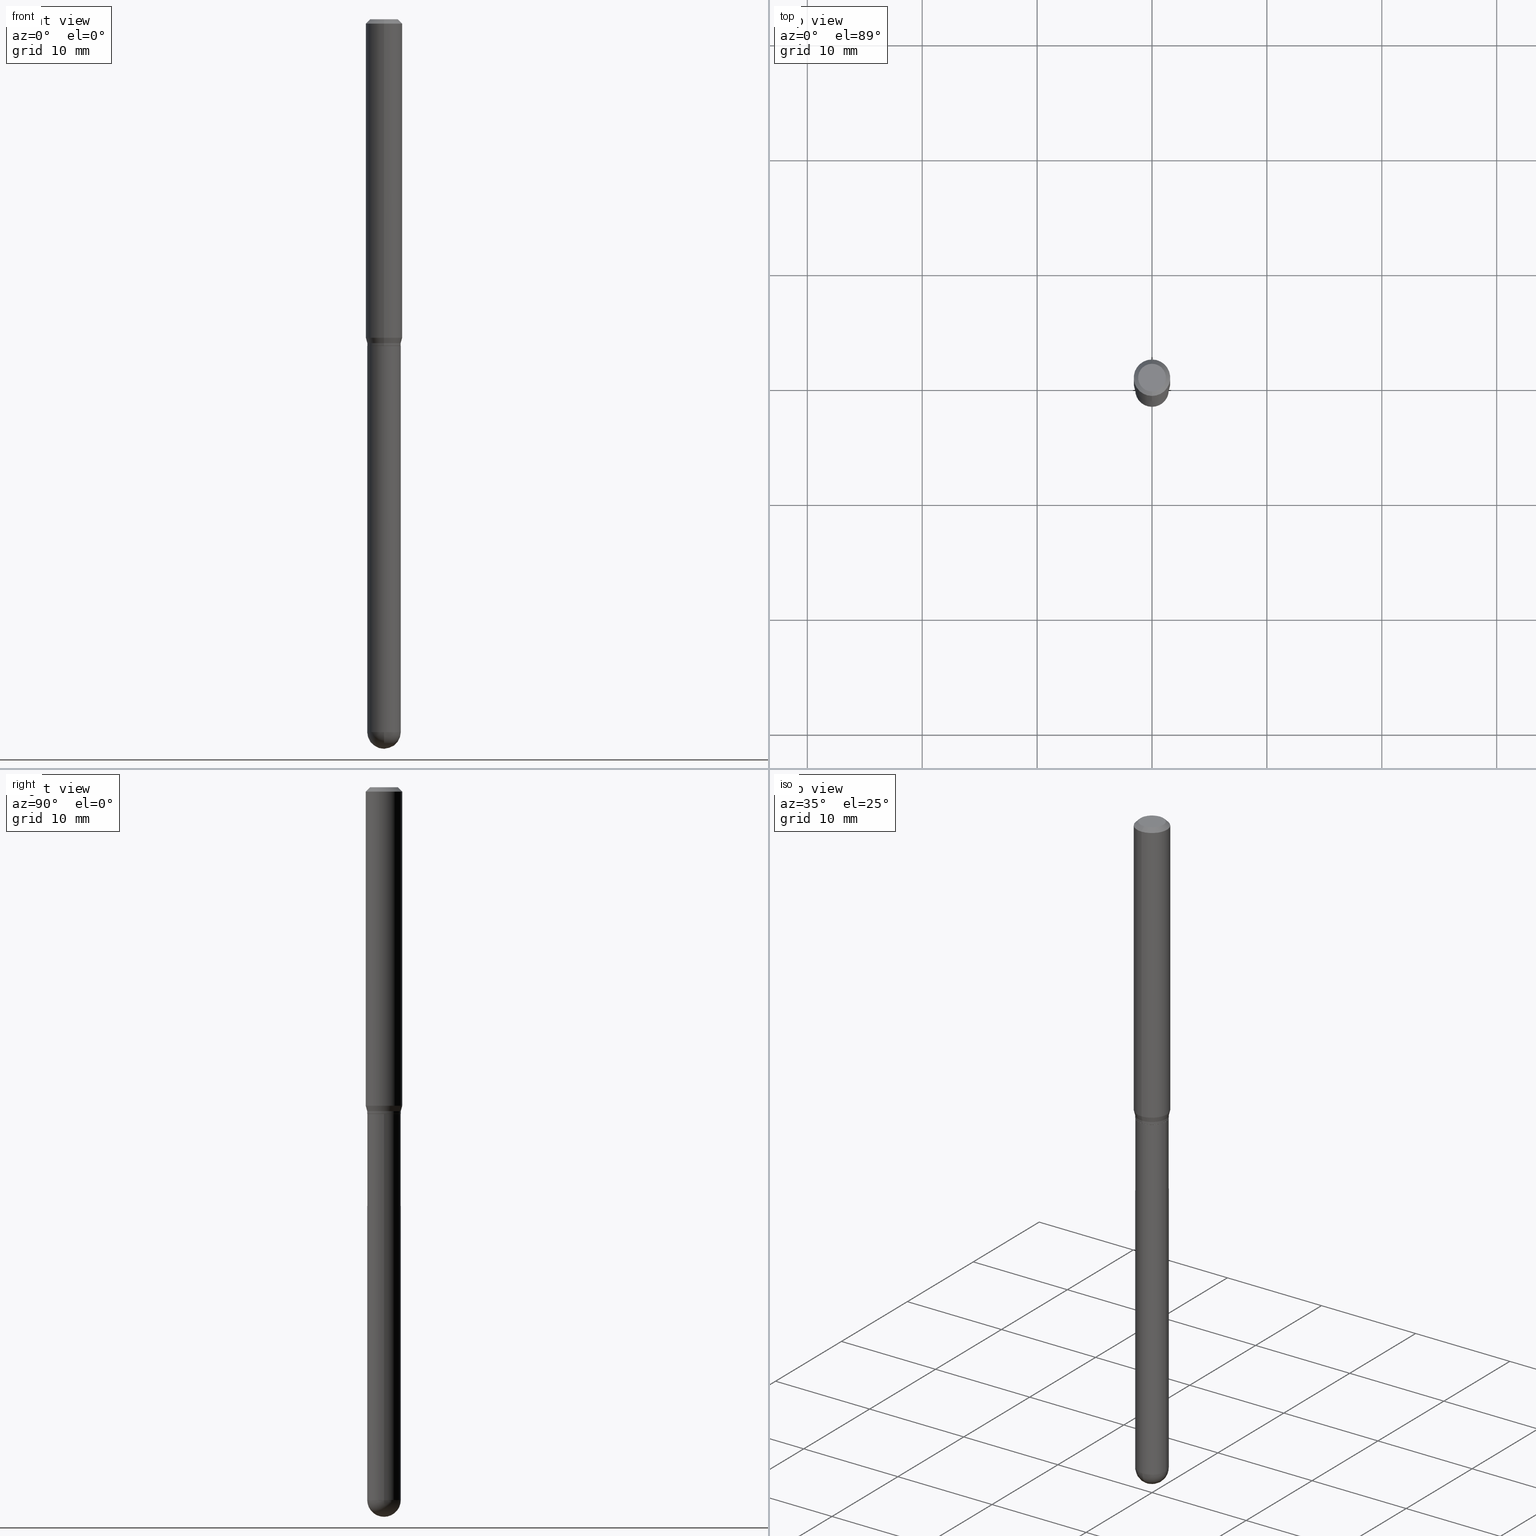
[diagram: canonical four-view strip — front | top / right | iso, engineering-drawing reading convention]
A machine part, canonical four-view strip (front | top / right | iso — engineering-drawing reading convention). The complete STEP part file that produces these views, byte-faithful:
ISO-10303-21;
HEADER;
FILE_DESCRIPTION (( 'STEP AP203' ),
    '1' );
FILE_NAME ('04536.STEP',
    '2024-03-08T20:37:15',
    ( '' ),
    ( '' ),
    'SwSTEP 2.0',
    'SolidWorks 2023',
    '' );
FILE_SCHEMA (( 'CONFIG_CONTROL_DESIGN' ));
ENDSEC;

DATA;
#1 = FACE_OUTER_BOUND ( 'NONE', #448, .T. ) ;
#2 = DIRECTION ( 'NONE',  ( 1.839019923739603076E-15, 0.2588190451025253469, 0.9659258262890670910 ) ) ;
#3 = AXIS2_PLACEMENT_3D ( 'NONE', #334, #495, #421 ) ;
#4 = VECTOR ( 'NONE', #128, 39.37007874015748143 ) ;
#5 = DIRECTION ( 'NONE',  ( -6.982962677686265922E-15, -1.000000000000000000, 4.370956789862821150E-15 ) ) ;
#6 = ADVANCED_FACE ( 'NONE', ( #13 ), #492, .T. ) ;
#7 = PERSON_AND_ORGANIZATION ( #503, #197 ) ;
#8 = ORIENTED_EDGE ( 'NONE', *, *, #353, .T. ) ;
#9 = EDGE_CURVE ( 'NONE', #77, #70, #365, .T. ) ;
#10 = CALENDAR_DATE ( 2024, 8, 3 ) ;
#11 = ORIENTED_EDGE ( 'NONE', *, *, #425, .T. ) ;
#12 = PERSON_AND_ORGANIZATION ( #503, #197 ) ;
#13 = FACE_OUTER_BOUND ( 'NONE', #91, .T. ) ;
#14 = SECURITY_CLASSIFICATION_LEVEL ( 'unclassified' ) ;
#15 = EDGE_LOOP ( 'NONE', ( #261, #262, #410, #175 ) ) ;
#16 = FACE_OUTER_BOUND ( 'NONE', #218, .T. ) ;
#17 = CARTESIAN_POINT ( 'NONE',  ( -4.364351673553916201E-16, -0.06250000000000000000, 2.182151499811262657E-16 ) ) ;
#18 = AXIS2_PLACEMENT_3D ( 'NONE', #116, #255, #288 ) ;
#19 = AXIS2_PLACEMENT_3D ( 'NONE', #64, #418, #415 ) ;
#20 = CARTESIAN_POINT ( 'NONE',  ( -0.05750000000000000250, -5.810639061752296196E-15, -1.120000000000000329 ) ) ;
#21 = DIRECTION ( 'NONE',  ( -6.982962677686265922E-15, -1.000000000000000000, 3.483106191921935554E-15 ) ) ;
#22 = CARTESIAN_POINT ( 'NONE',  ( 3.668243995867287610E-31, -5.237163599547054290E-17, -0.01500000000000006710 ) ) ;
#23 = MANIFOLD_SOLID_BREP ( 'Body-Move/Copy2[2]', #427 ) ;
#24 = DIRECTION ( 'NONE',  ( -2.445495997244847628E-29, 3.491442399698020252E-15, 1.000000000000000000 ) ) ;
#25 = DIRECTION ( 'NONE',  ( -2.445495997244847628E-29, 3.491442399698020646E-15, 1.000000000000000000 ) ) ;
#26 = AXIS2_PLACEMENT_3D ( 'NONE', #224, #147, #331 ) ;
#27 = APPROVAL_PERSON_ORGANIZATION ( #317, #90, #444 ) ;
#28 = ORIENTED_EDGE ( 'NONE', *, *, #445, .T. ) ;
#29 = DIRECTION ( 'NONE',  ( -6.982962677686265922E-15, -1.000000000000000000, 2.396357889179178137E-15 ) ) ;
#30 = DIRECTION ( 'NONE',  ( -2.445495997244847628E-29, 3.491442399698020646E-15, 1.000000000000000000 ) ) ;
#31 = EDGE_LOOP ( 'NONE', ( #298, #279, #122, #299, #134 ) ) ;
#32 = DIRECTION ( 'NONE',  ( -2.445468806185136597E-29, 3.491481338843145583E-15, 1.000000000000000000 ) ) ;
#33 = CYLINDRICAL_SURFACE ( 'NONE', #148, 0.06250000000000000000 ) ;
#34 = EDGE_CURVE ( 'NONE', #333, #499, #417, .T. ) ;
#35 = ORIENTED_EDGE ( 'NONE', *, *, #154, .F. ) ;
#36 = MANIFOLD_SOLID_BREP ( 'Body-Move/Copy2[1]', #44 ) ;
#37 = DIRECTION ( 'NONE',  ( -2.445468806185136877E-29, 3.491481338843145188E-15, 1.000000000000000000 ) ) ;
#38 = CARTESIAN_POINT ( 'NONE',  ( 2.738925062927354020E-29, -3.910459099504324188E-15, -1.120000000000000329 ) ) ;
#39 = EDGE_LOOP ( 'NONE', ( #280, #486, #133, #139 ) ) ;
#40 = CC_DESIGN_APPROVAL ( #206, ( #253 ) ) ;
#41 = LINE ( 'NONE', #163, #4 ) ;
#42 = CARTESIAN_POINT ( 'NONE',  ( 0.05750000000000000250, -4.311979453471284209E-15, -1.120000000000000329 ) ) ;
#43 =( CONVERSION_BASED_UNIT ( 'INCH', #310 ) LENGTH_UNIT ( ) NAMED_UNIT ( #321 ) );
#44 = CLOSED_SHELL ( 'NONE', ( #111, #287, #325, #284, #264 ) ) ;
#45 = DIRECTION ( 'NONE',  ( -6.982962677686266711E-15, -1.000000000000000000, 3.491442399698021040E-15 ) ) ;
#46 = EDGE_LOOP ( 'NONE', ( #340, #335, #249, #304 ) ) ;
#47 = DIRECTION ( 'NONE',  ( 2.445495997244847628E-29, -3.491442399698020646E-15, -1.000000000000000000 ) ) ;
#48 = DIRECTION ( 'NONE',  ( 6.982962677686266711E-15, 1.000000000000000000, -4.751039988981321814E-15 ) ) ;
#49 = APPLICATION_CONTEXT ( 'configuration controlled 3d designs of mechanical parts and assemblies' ) ;
#50 = APPROVAL_STATUS ( 'not_yet_approved' ) ;
#51 = LOCAL_TIME ( 15, 37, 15.00000000000000000, #135 ) ;
#52 = ORIENTED_EDGE ( 'NONE', *, *, #34, .T. ) ;
#53 = COORDINATED_UNIVERSAL_TIME_OFFSET ( 5, 0, .BEHIND. ) ;
#54 = ORIENTED_EDGE ( 'NONE', *, *, #237, .T. ) ;
#55 = ADVANCED_FACE ( 'NONE', ( #176 ), #477, .T. ) ;
#56 = EDGE_CURVE ( 'NONE', #152, #487, #162, .T. ) ;
#57 = ORIENTED_EDGE ( 'NONE', *, *, #395, .F. ) ;
#58 = ORIENTED_EDGE ( 'NONE', *, *, #88, .T. ) ;
#59 = PERSON_AND_ORGANIZATION ( #503, #197 ) ;
#60 = CARTESIAN_POINT ( 'NONE',  ( 2.737732768915607187E-29, -3.908669766461934888E-15, -1.119500000000000384 ) ) ;
#61 = ORIENTED_EDGE ( 'NONE', *, *, #432, .F. ) ;
#62 = APPROVAL ( #315, 'UNSPECIFIED' ) ;
#63 = ORIENTED_EDGE ( 'NONE', *, *, #159, .T. ) ;
#64 = CARTESIAN_POINT ( 'NONE',  ( 4.015203539669877291E-16, 0.05749999999999608896, -1.120000000000000551 ) ) ;
#65 = ORIENTED_EDGE ( 'NONE', *, *, #56, .T. ) ;
#66 = ADVANCED_FACE ( 'NONE', ( #244 ), #33, .T. ) ;
#67 = ORIENTED_EDGE ( 'NONE', *, *, #117, .T. ) ;
#68 = CYLINDRICAL_SURFACE ( 'NONE', #506, 0.05750000000000000250 ) ;
#69 = CIRCLE ( 'NONE', #86, 0.06250000000000000000 ) ;
#70 = VERTEX_POINT ( 'NONE', #412 ) ;
#71 = FACE_OUTER_BOUND ( 'NONE', #222, .T. ) ;
#72 = LINE ( 'NONE', #220, #207 ) ;
#73 = CARTESIAN_POINT ( 'NONE',  ( 2.738955516914229972E-29, -3.910415487661784102E-15, -1.120000000000000329 ) ) ;
#74 = CARTESIAN_POINT ( 'NONE',  ( -4.364351673553650454E-16, -0.06250000000000383027, -1.091339745962155883 ) ) ;
#75 = UNCERTAINTY_MEASURE_WITH_UNIT (LENGTH_MEASURE( 1.000000000000000082E-05 ), #43, 'distance_accuracy_value', 'NONE');
#76 = CC_DESIGN_APPROVAL ( #62, ( #137 ) ) ;
#77 = VERTEX_POINT ( 'NONE', #74 ) ;
#78 = CARTESIAN_POINT ( 'NONE',  ( 4.085620730620851361E-16, 0.05749999999999618611, -1.110000000000000320 ) ) ;
#79 = FACE_OUTER_BOUND ( 'NONE', #485, .T. ) ;
#80 = DIRECTION ( 'NONE',  ( -4.851104656540964275E-15, -0.7071067811865500152, -0.7071067811865450192 ) ) ;
#81 = AXIS2_PLACEMENT_3D ( 'NONE', #107, #282, #141 ) ;
#82 = FACE_OUTER_BOUND ( 'NONE', #83, .T. ) ;
#83 = EDGE_LOOP ( 'NONE', ( #191, #309 ) ) ;
#84 = DIRECTION ( 'NONE',  ( -4.937700262164674260E-15, -0.7071067811865632269, 0.7071067811865319186 ) ) ;
#85 = VERTEX_POINT ( 'NONE', #20 ) ;
#86 = AXIS2_PLACEMENT_3D ( 'NONE', #371, #490, #21 ) ;
#87 = FACE_OUTER_BOUND ( 'NONE', #39, .T. ) ;
#88 = EDGE_CURVE ( 'NONE', #437, #252, #151, .T. ) ;
#89 = CARTESIAN_POINT ( 'NONE',  ( 0.000000000000000000, 0.000000000000000000, 0.000000000000000000 ) ) ;
#90 = APPROVAL ( #132, 'UNSPECIFIED' ) ;
#91 = EDGE_LOOP ( 'NONE', ( #245, #409, #406, #475 ) ) ;
#92 = CARTESIAN_POINT ( 'NONE',  ( -4.015203539669335442E-16, -0.05750000000000393685, -1.110000000000000098 ) ) ;
#93 = DIRECTION ( 'NONE',  ( -2.445495997244847348E-29, 3.491442399698020252E-15, 1.000000000000000000 ) ) ;
#94 = DATE_TIME_ROLE ( 'classification_date' ) ;
#95 = FACE_OUTER_BOUND ( 'NONE', #213, .T. ) ;
#96 = AXIS2_PLACEMENT_3D ( 'NONE', #259, #120, #221 ) ;
#97 = CARTESIAN_POINT ( 'NONE',  ( 3.668243995867287610E-31, -5.237163599547054290E-17, -0.01500000000000006710 ) ) ;
#98 = APPROVAL_DATE_TIME ( #362, #62 ) ;
#99 = EDGE_CURVE ( 'NONE', #366, #400, #168, .T. ) ;
#100 = DIRECTION ( 'NONE',  ( -2.445495997244847628E-29, 3.491442399698020252E-15, 1.000000000000000000 ) ) ;
#101 = PERSON_AND_ORGANIZATION_ROLE ( 'creator' ) ;
#102 = ORIENTED_EDGE ( 'NONE', *, *, #56, .F. ) ;
#103 = CALENDAR_DATE ( 2024, 8, 3 ) ;
#104 = CIRCLE ( 'NONE', #357, 0.05700000000000000205 ) ;
#105 = AXIS2_PLACEMENT_3D ( 'NONE', #240, #392, #337 ) ;
#106 = ADVANCED_FACE ( 'NONE', ( #79 ), #217, .T. ) ;
#107 = CARTESIAN_POINT ( 'NONE',  ( 5.973057559107196227E-29, -8.527943170124383355E-15, -2.442499999999999893 ) ) ;
#108 = CARTESIAN_POINT ( 'NONE',  ( 3.840629472727447874E-16, 0.04749999999999999362, -2.313455976474456528E-16 ) ) ;
#109 = FACE_OUTER_BOUND ( 'NONE', #204, .T. ) ;
#110 = CARTESIAN_POINT ( 'NONE',  ( 2.738955516914229972E-29, -3.910415487661784102E-15, -1.120000000000000329 ) ) ;
#111 = ADVANCED_FACE ( 'NONE', ( #491 ), #68, .T. ) ;
#112 = DIRECTION ( 'NONE',  ( -6.982962677686265922E-15, -1.000000000000000000, 3.483106191921935554E-15 ) ) ;
#113 = AXIS2_PLACEMENT_3D ( 'NONE', #294, #182, #453 ) ;
#114 = CIRCLE ( 'NONE', #394, 0.06250000000000000000 ) ;
#115 = CARTESIAN_POINT ( 'NONE',  ( 4.440892098500893388E-16, 0.06249999999999993755, -0.01500000000000028394 ) ) ;
#116 = CARTESIAN_POINT ( 'NONE',  ( 2.737732768915607187E-29, -3.908669766461934888E-15, -1.119500000000000384 ) ) ;
#117 = EDGE_CURVE ( 'NONE', #487, #152, #177, .T. ) ;
#118 = PLANE ( 'NONE',  #3 ) ;
#119 = CARTESIAN_POINT ( 'NONE',  ( 2.738925062927354020E-29, -3.910459099504324188E-15, -1.120000000000000329 ) ) ;
#120 = DIRECTION ( 'NONE',  ( -2.445495997244847628E-29, 3.491442399698020646E-15, 1.000000000000000000 ) ) ;
#121 = AXIS2_PLACEMENT_3D ( 'NONE', #306, #474, #236 ) ;
#122 = ORIENTED_EDGE ( 'NONE', *, *, #318, .F. ) ;
#123 = EDGE_CURVE ( 'NONE', #314, #333, #433, .T. ) ;
#124 = DIRECTION ( 'NONE',  ( 1.000000000000000000, -6.982962677686265922E-15, 4.876176775795935232E-29 ) ) ;
#125 = DIRECTION ( 'NONE',  ( 0.000000000000000000, 0.000000000000000000, 1.000000000000000000 ) ) ;
#126 = EDGE_CURVE ( 'NONE', #311, #70, #246, .T. ) ;
#127 = VERTEX_POINT ( 'NONE', #493 ) ;
#128 = DIRECTION ( 'NONE',  ( 5.024295867788190974E-15, 0.7071067811865681119, 0.7071067811865270336 ) ) ;
#129 = VECTOR ( 'NONE', #300, 39.37007874015748143 ) ;
#130 = LINE ( 'NONE', #380, #297 ) ;
#131 = SPHERICAL_SURFACE ( 'NONE', #507, 0.05750000000000007189 ) ;
#132 = APPROVAL_STATUS ( 'not_yet_approved' ) ;
#133 = ORIENTED_EDGE ( 'NONE', *, *, #364, .T. ) ;
#134 = ORIENTED_EDGE ( 'NONE', *, *, #251, .T. ) ;
#135 = COORDINATED_UNIVERSAL_TIME_OFFSET ( 5, 0, .BEHIND. ) ;
#136 = AXIS2_PLACEMENT_3D ( 'NONE', #73, #374, #416 ) ;
#137 = PRODUCT_DEFINITION_FORMATION_WITH_SPECIFIED_SOURCE ( 'ANY', '', #211, .NOT_KNOWN. ) ;
#138 = CARTESIAN_POINT ( 'NONE',  ( 2.714500556941780999E-29, -3.875501063664803781E-15, -1.110000000000000098 ) ) ;
#139 = ORIENTED_EDGE ( 'NONE', *, *, #239, .F. ) ;
#140 = PERSON_AND_ORGANIZATION ( #503, #197 ) ;
#141 = DIRECTION ( 'NONE',  ( 1.000000000000000000, -6.982962677686273810E-15, 0.000000000000000000 ) ) ;
#142 = ORIENTED_EDGE ( 'NONE', *, *, #9, .F. ) ;
#143 = AXIS2_PLACEMENT_3D ( 'NONE', #467, #47, #257 ) ;
#144 = EDGE_LOOP ( 'NONE', ( #512, #11, #102, #407 ) ) ;
#145 = CARTESIAN_POINT ( 'NONE',  ( 0.000000000000000000, 0.000000000000000000, 0.000000000000000000 ) ) ;
#146 = DIRECTION ( 'NONE',  ( 1.000000000000000000, -6.982962677686265133E-15, 0.000000000000000000 ) ) ;
#147 = DIRECTION ( 'NONE',  ( -2.445495997244847628E-29, 3.491442399698020646E-15, 1.000000000000000000 ) ) ;
#148 = AXIS2_PLACEMENT_3D ( 'NONE', #464, #426, #250 ) ;
#149 = DIRECTION ( 'NONE',  ( -2.445468806185136877E-29, 3.491481338843145188E-15, 1.000000000000000000 ) ) ;
#150 = LOCAL_TIME ( 15, 37, 15.00000000000000000, #274 ) ;
#151 = LINE ( 'NONE', #323, #194 ) ;
#152 = VERTEX_POINT ( 'NONE', #292 ) ;
#153 = DIRECTION ( 'NONE',  ( -2.445495997244847628E-29, 3.491442399698020646E-15, 1.000000000000000000 ) ) ;
#154 = EDGE_CURVE ( 'NONE', #339, #77, #277, .T. ) ;
#155 = EDGE_CURVE ( 'NONE', #127, #439, #104, .T. ) ;
#156 = CARTESIAN_POINT ( 'NONE',  ( -3.773273898774340269E-16, -0.04749999999999999362, 1.003414303238663352E-16 ) ) ;
#157 = AXIS2_PLACEMENT_3D ( 'NONE', #381, #290, #456 ) ;
#158 = CIRCLE ( 'NONE', #164, 0.05750000000000000250 ) ;
#159 = EDGE_CURVE ( 'NONE', #275, #241, #369, .T. ) ;
#160 = CARTESIAN_POINT ( 'NONE',  ( 0.05750000000000000250, -6.620721488781313792E-15, -2.442499999999999893 ) ) ;
#161 = FACE_OUTER_BOUND ( 'NONE', #200, .T. ) ;
#162 = CIRCLE ( 'NONE', #446, 0.05750000000000005801 ) ;
#163 = CARTESIAN_POINT ( 'NONE',  ( 4.050093593832844842E-16, 0.05699999999999608852, -1.120000000000000551 ) ) ;
#164 = AXIS2_PLACEMENT_3D ( 'NONE', #424, #32, #268 ) ;
#165 = DIRECTION ( 'NONE',  ( 1.000000000000000000, -6.982962677686273810E-15, 0.000000000000000000 ) ) ;
#166 = ORIENTED_EDGE ( 'NONE', *, *, #445, .F. ) ;
#167 = COORDINATED_UNIVERSAL_TIME_OFFSET ( 5, 0, .BEHIND. ) ;
#168 = CIRCLE ( 'NONE', #96, 0.04749999999999999362 ) ;
#169 = PERSON_AND_ORGANIZATION_ROLE ( 'design_owner' ) ;
#170 = AXIS2_PLACEMENT_3D ( 'NONE', #22, #30, #112 ) ;
#171 = AXIS2_PLACEMENT_3D ( 'NONE', #349, #195, #305 ) ;
#172 = CALENDAR_DATE ( 2024, 8, 3 ) ;
#173 = EDGE_LOOP ( 'NONE', ( #166, #67, #193, #429 ) ) ;
#174 = PERSON_AND_ORGANIZATION ( #503, #197 ) ;
#175 = ORIENTED_EDGE ( 'NONE', *, *, #126, .F. ) ;
#176 = FACE_OUTER_BOUND ( 'NONE', #388, .T. ) ;
#177 = CIRCLE ( 'NONE', #18, 0.05750000000000005801 ) ;
#178 = DIRECTION ( 'NONE',  ( -6.982962677686266711E-15, -1.000000000000000000, 3.491442399698021040E-15 ) ) ;
#179 = ORIENTED_EDGE ( 'NONE', *, *, #99, .F. ) ;
#180 = ADVANCED_FACE ( 'NONE', ( #109 ), #488, .T. ) ;
#181 = DIRECTION ( 'NONE',  ( -2.445495997244847628E-29, 3.491442399698020646E-15, 1.000000000000000000 ) ) ;
#182 = DIRECTION ( 'NONE',  ( -2.445468806185136597E-29, 3.491481338843145583E-15, 1.000000000000000000 ) ) ;
#183 = CARTESIAN_POINT ( 'NONE',  ( 4.440892098500891416E-16, 0.06249999999999617667, -1.091339745962156327 ) ) ;
#184 = DIRECTION ( 'NONE',  ( -6.982962677686265922E-15, -1.000000000000000000, 2.396357889179178137E-15 ) ) ;
#185 = DIRECTION ( 'NONE',  ( -6.982962677686266711E-15, -1.000000000000000000, 2.375519994490661302E-15 ) ) ;
#186 = EDGE_LOOP ( 'NONE', ( #465, #212 ) ) ;
#187 = LINE ( 'NONE', #470, #443 ) ;
#188 = SPHERICAL_SURFACE ( 'NONE', #121, 0.05750000000000007189 ) ;
#189 = VECTOR ( 'NONE', #468, 39.37007874015748143 ) ;
#190 = CARTESIAN_POINT ( 'NONE',  ( 0.000000000000000000, 0.000000000000000000, 0.000000000000000000 ) ) ;
#191 = ORIENTED_EDGE ( 'NONE', *, *, #223, .F. ) ;
#192 = CARTESIAN_POINT ( 'NONE',  ( 0.000000000000000000, 0.000000000000000000, 0.000000000000000000 ) ) ;
#193 = ORIENTED_EDGE ( 'NONE', *, *, #508, .T. ) ;
#194 = VECTOR ( 'NONE', #149, 39.37007874015748143 ) ;
#195 = DIRECTION ( 'NONE',  ( 1.000000000000000000, -6.982962677686265922E-15, 4.883557194083112340E-29 ) ) ;
#196 = DIRECTION ( 'NONE',  ( -2.445468806185136597E-29, 3.491481338843145583E-15, 1.000000000000000000 ) ) ;
#197 = ORGANIZATION ( 'UNSPECIFIED', 'UNSPECIFIED', '' ) ;
#198 = ADVANCED_BREP_SHAPE_REPRESENTATION ( '04536', ( #36, #23, #291 ), #342 ) ;
#199 = EDGE_CURVE ( 'NONE', #400, #366, #449, .T. ) ;
#200 = EDGE_LOOP ( 'NONE', ( #57, #52, #375, #58, #226 ) ) ;
#201 = PRODUCT_DEFINITION_SHAPE ( 'NONE', 'NONE',  #454 ) ;
#202 = APPROVAL_ROLE ( '' ) ;
#203 = VECTOR ( 'NONE', #100, 39.37007874015748143 ) ;
#204 = EDGE_LOOP ( 'NONE', ( #368, #63, #346, #35 ) ) ;
#205 = ORIENTED_EDGE ( 'NONE', *, *, #451, .F. ) ;
#206 = APPROVAL ( #50, 'UNSPECIFIED' ) ;
#207 = VECTOR ( 'NONE', #84, 39.37007874015748143 ) ;
#208 = ADVANCED_FACE ( 'NONE', ( #326 ), #341, .T. ) ;
#209 = ORIENTED_EDGE ( 'NONE', *, *, #270, .T. ) ;
#210 = DATE_AND_TIME ( #172, #260 ) ;
#211 = PRODUCT ( '04536', '04536', '', ( #344 ) ) ;
#212 = ORIENTED_EDGE ( 'NONE', *, *, #303, .T. ) ;
#213 = EDGE_LOOP ( 'NONE', ( #61, #54, #285, #332 ) ) ;
#214 = ADVANCED_FACE ( 'NONE', ( #71 ), #118, .F. ) ;
#215 = AXIS2_PLACEMENT_3D ( 'NONE', #372, #295, #419 ) ;
#216 = CONICAL_SURFACE ( 'NONE', #143, 0.06250000000000000000, 0.7853981633974483900 ) ;
#217 = CYLINDRICAL_SURFACE ( 'NONE', #327, 0.06250000000000000000 ) ;
#218 = EDGE_LOOP ( 'NONE', ( #65, #28, #509, #462 ) ) ;
#219 = CARTESIAN_POINT ( 'NONE',  ( 2.738955516914229972E-29, -3.910415487661784102E-15, -1.120000000000000329 ) ) ;
#220 = CARTESIAN_POINT ( 'NONE',  ( -3.980288726280897482E-16, -0.05700000000000390865, -1.120000000000000107 ) ) ;
#221 = DIRECTION ( 'NONE',  ( -6.982962677686266711E-15, -1.000000000000000000, 3.491442399698021040E-15 ) ) ;
#222 = EDGE_LOOP ( 'NONE', ( #481, #379 ) ) ;
#223 = EDGE_CURVE ( 'NONE', #439, #127, #413, .T. ) ;
#224 = CARTESIAN_POINT ( 'NONE',  ( 2.668866980384661490E-29, -3.810349861527938481E-15, -1.091339745962156105 ) ) ;
#225 = CC_DESIGN_SECURITY_CLASSIFICATION ( #253, ( #137 ) ) ;
#226 = ORIENTED_EDGE ( 'NONE', *, *, #303, .F. ) ;
#227 = DIRECTION ( 'NONE',  ( -2.445495997244847628E-29, 3.491442399698020252E-15, 1.000000000000000000 ) ) ;
#228 = DIRECTION ( 'NONE',  ( 1.000000000000000000, -6.982962677686265922E-15, 4.876176775795935232E-29 ) ) ;
#229 =( NAMED_UNIT ( * ) SI_UNIT ( $, .STERADIAN. ) SOLID_ANGLE_UNIT ( ) );
#230 = CARTESIAN_POINT ( 'NONE',  ( 2.738955516914229972E-29, -3.910415487661784102E-15, -1.120000000000000329 ) ) ;
#231 = ORIENTED_EDGE ( 'NONE', *, *, #251, .F. ) ;
#232 = DIRECTION ( 'NONE',  ( -2.445495997244847628E-29, 3.491442399698020252E-15, 1.000000000000000000 ) ) ;
#233 = CIRCLE ( 'NONE', #248, 0.05750000000000000250 ) ;
#234 = LINE ( 'NONE', #235, #358 ) ;
#235 = CARTESIAN_POINT ( 'NONE',  ( 4.085620730620579698E-16, 0.05750000000000005801, -2.007579379826364011E-16 ) ) ;
#236 = DIRECTION ( 'NONE',  ( 6.982962677686266711E-15, 1.000000000000000000, -4.751039988981321814E-15 ) ) ;
#237 = EDGE_CURVE ( 'NONE', #422, #499, #283, .T. ) ;
#238 = SHAPE_DEFINITION_REPRESENTATION ( #201, #198 ) ;
#239 = EDGE_CURVE ( 'NONE', #366, #311, #267, .T. ) ;
#240 = CARTESIAN_POINT ( 'NONE',  ( 2.714500556941780999E-29, -3.875501063664803781E-15, -1.110000000000000098 ) ) ;
#241 = VERTEX_POINT ( 'NONE', #384 ) ;
#242 = CONICAL_SURFACE ( 'NONE', #329, 0.05700000000000000205, 0.7853981633974739252 ) ;
#243 = DATE_AND_TIME ( #103, #51 ) ;
#244 = FACE_OUTER_BOUND ( 'NONE', #15, .T. ) ;
#245 = ORIENTED_EDGE ( 'NONE', *, *, #308, .T. ) ;
#246 = CIRCLE ( 'NONE', #170, 0.06250000000000000000 ) ;
#247 = APPROVAL_DATE_TIME ( #243, #206 ) ;
#248 = AXIS2_PLACEMENT_3D ( 'NONE', #38, #196, #350 ) ;
#249 = ORIENTED_EDGE ( 'NONE', *, *, #378, .T. ) ;
#250 = DIRECTION ( 'NONE',  ( -6.982962677686265922E-15, -1.000000000000000000, 3.491442399698020252E-15 ) ) ;
#251 = EDGE_CURVE ( 'NONE', #437, #314, #393, .T. ) ;
#252 = VERTEX_POINT ( 'NONE', #42 ) ;
#253 = SECURITY_CLASSIFICATION ( '', '', #14 ) ;
#254 = CARTESIAN_POINT ( 'NONE',  ( 2.738955516914229972E-29, -3.910415487661784102E-15, -1.120000000000000329 ) ) ;
#255 = DIRECTION ( 'NONE',  ( -2.445495997244847628E-29, 3.491442399698020646E-15, 1.000000000000000000 ) ) ;
#256 = DIRECTION ( 'NONE',  ( -1.000000000000000000, 7.105427357601001070E-15, -4.926315508542082329E-29 ) ) ;
#257 = DIRECTION ( 'NONE',  ( 6.982962677686265922E-15, 1.000000000000000000, -3.483106191921935554E-15 ) ) ;
#258 = AXIS2_PLACEMENT_3D ( 'NONE', #219, #25, #184 ) ;
#259 = CARTESIAN_POINT ( 'NONE',  ( 1.601850834061036899E-45, -2.286967521653393436E-31, -6.550208366178964645E-17 ) ) ;
#260 = LOCAL_TIME ( 15, 37, 15.00000000000000000, #53 ) ;
#261 = ORIENTED_EDGE ( 'NONE', *, *, #353, .F. ) ;
#262 = ORIENTED_EDGE ( 'NONE', *, *, #154, .T. ) ;
#263 = PLANE ( 'NONE',  #351 ) ;
#264 = ADVANCED_FACE ( 'NONE', ( #161 ), #428, .T. ) ;
#265 = CARTESIAN_POINT ( 'NONE',  ( 4.085620730620848896E-16, 0.05749999999999608896, -1.119500000000000384 ) ) ;
#266 = CC_DESIGN_PERSON_AND_ORGANIZATION_ASSIGNMENT ( #140, #101, ( #137 ) ) ;
#267 = LINE ( 'NONE', #431, #189 ) ;
#268 = DIRECTION ( 'NONE',  ( 1.000000000000000000, -6.982962677686273810E-15, 0.000000000000000000 ) ) ;
#269 = FACE_OUTER_BOUND ( 'NONE', #173, .T. ) ;
#270 = EDGE_CURVE ( 'NONE', #77, #339, #114, .T. ) ;
#271 = CARTESIAN_POINT ( 'NONE',  ( 5.968140352944414042E-29, -8.534984889219480121E-15, -2.442499999999999893 ) ) ;
#272 = ADVANCED_FACE ( 'NONE', ( #269 ), #434, .T. ) ;
#273 = ADVANCED_FACE ( 'NONE', ( #82 ), #263, .F. ) ;
#274 = COORDINATED_UNIVERSAL_TIME_OFFSET ( 5, 0, .BEHIND. ) ;
#275 = VERTEX_POINT ( 'NONE', #382 ) ;
#276 = DIRECTION ( 'NONE',  ( 6.982962677686265922E-15, 1.000000000000000000, -3.483106191921935554E-15 ) ) ;
#277 = CIRCLE ( 'NONE', #26, 0.06250000000000000000 ) ;
#278 = CIRCLE ( 'NONE', #466, 0.05750000000000000250 ) ;
#279 = ORIENTED_EDGE ( 'NONE', *, *, #395, .T. ) ;
#280 = ORIENTED_EDGE ( 'NONE', *, *, #199, .F. ) ;
#281 = DATE_AND_TIME ( #396, #496 ) ;
#282 = DIRECTION ( 'NONE',  ( -2.445468806185136597E-29, 3.491481338843145583E-15, 1.000000000000000000 ) ) ;
#283 = CIRCLE ( 'NONE', #319, 0.05750000000000007189 ) ;
#284 = ADVANCED_FACE ( 'NONE', ( #1 ), #188, .T. ) ;
#285 = ORIENTED_EDGE ( 'NONE', *, *, #34, .F. ) ;
#286 = ORIENTED_EDGE ( 'NONE', *, *, #237, .F. ) ;
#287 = ADVANCED_FACE ( 'NONE', ( #95 ), #131, .T. ) ;
#288 = DIRECTION ( 'NONE',  ( -6.982962677686266711E-15, -1.000000000000000000, 2.375519994490661302E-15 ) ) ;
#289 = LINE ( 'NONE', #373, #385 ) ;
#290 = DIRECTION ( 'NONE',  ( -2.445495997244847628E-29, 3.491442399698020646E-15, 1.000000000000000000 ) ) ;
#291 = AXIS2_PLACEMENT_3D ( 'NONE', #192, #125, #430 ) ;
#292 = CARTESIAN_POINT ( 'NONE',  ( -4.015203539669337414E-16, -0.05750000000000403400, -1.119500000000000162 ) ) ;
#293 = DIRECTION ( 'NONE',  ( -2.445495997244847628E-29, 3.491442399698020646E-15, 1.000000000000000000 ) ) ;
#294 = CARTESIAN_POINT ( 'NONE',  ( 5.973057559107196227E-29, -8.527943170124383355E-15, -2.442499999999999893 ) ) ;
#295 = DIRECTION ( 'NONE',  ( -2.445495997244847628E-29, 3.491442399698020646E-15, 1.000000000000000000 ) ) ;
#296 = CARTESIAN_POINT ( 'NONE',  ( -3.980288726280897482E-16, -0.05700000000000390865, -1.120000000000000107 ) ) ;
#297 = VECTOR ( 'NONE', #80, 39.37007874015748143 ) ;
#298 = ORIENTED_EDGE ( 'NONE', *, *, #123, .T. ) ;
#299 = ORIENTED_EDGE ( 'NONE', *, *, #88, .F. ) ;
#300 = DIRECTION ( 'NONE',  ( -1.807323732225332900E-15, -0.2588190451025185745, 0.9659258262890689783 ) ) ;
#301 = ORIENTED_EDGE ( 'NONE', *, *, #126, .T. ) ;
#302 =( NAMED_UNIT ( * ) PLANE_ANGLE_UNIT ( ) SI_UNIT ( $, .RADIAN. ) );
#303 = EDGE_CURVE ( 'NONE', #85, #252, #233, .T. ) ;
#304 = ORIENTED_EDGE ( 'NONE', *, *, #117, .F. ) ;
#305 = DIRECTION ( 'NONE',  ( 6.982962677686265922E-15, 1.000000000000000000, 0.000000000000000000 ) ) ;
#306 = CARTESIAN_POINT ( 'NONE',  ( 5.968140352944414042E-29, -8.534984889219480121E-15, -2.442499999999999893 ) ) ;
#307 = LOCAL_TIME ( 15, 37, 15.00000000000000000, #167 ) ;
#308 = EDGE_CURVE ( 'NONE', #241, #275, #457, .T. ) ;
#309 = ORIENTED_EDGE ( 'NONE', *, *, #155, .F. ) ;
#310 = LENGTH_MEASURE_WITH_UNIT ( LENGTH_MEASURE( 0.02539999999999999897 ), #383 );
#311 = VERTEX_POINT ( 'NONE', #115 ) ;
#312 = APPROVAL_DATE_TIME ( #281, #90 ) ;
#313 = PERSON_AND_ORGANIZATION ( #503, #197 ) ;
#314 = VERTEX_POINT ( 'NONE', #322 ) ;
#315 = APPROVAL_STATUS ( 'not_yet_approved' ) ;
#316 = DIRECTION ( 'NONE',  ( -2.445495997244847628E-29, 3.491442399698020646E-15, 1.000000000000000000 ) ) ;
#317 = PERSON_AND_ORGANIZATION ( #503, #197 ) ;
#318 = EDGE_CURVE ( 'NONE', #252, #85, #278, .T. ) ;
#319 = AXIS2_PLACEMENT_3D ( 'NONE', #498, #256, #505 ) ;
#320 = AXIS2_PLACEMENT_3D ( 'NONE', #190, #345, #124 ) ;
#321 = DIMENSIONAL_EXPONENTS ( 1.000000000000000000, 0.000000000000000000, 0.000000000000000000, 0.000000000000000000, 0.000000000000000000, 0.000000000000000000, 0.000000000000000000 ) ;
#322 = CARTESIAN_POINT ( 'NONE',  ( 4.015203539670203189E-16, 0.05749999999999149541, -2.442500000000000338 ) ) ;
#323 = CARTESIAN_POINT ( 'NONE',  ( 0.05750000000000000250, -4.015203539669603161E-16, 2.803801646082662941E-30 ) ) ;
#324 = CARTESIAN_POINT ( 'NONE',  ( 0.000000000000000000, 0.000000000000000000, 0.000000000000000000 ) ) ;
#325 = ADVANCED_FACE ( 'NONE', ( #455 ), #408, .F. ) ;
#326 = FACE_OUTER_BOUND ( 'NONE', #46, .T. ) ;
#327 = AXIS2_PLACEMENT_3D ( 'NONE', #324, #377, #501 ) ;
#328 = CC_DESIGN_DATE_AND_TIME_ASSIGNMENT ( #440, #94, ( #253 ) ) ;
#329 = AXIS2_PLACEMENT_3D ( 'NONE', #110, #293, #29 ) ;
#330 = VECTOR ( 'NONE', #2, 39.37007874015748143 ) ;
#331 = DIRECTION ( 'NONE',  ( -6.982962677686265922E-15, -1.000000000000000000, 4.370956789862821150E-15 ) ) ;
#332 = ORIENTED_EDGE ( 'NONE', *, *, #123, .F. ) ;
#333 = VERTEX_POINT ( 'NONE', #420 ) ;
#334 = CARTESIAN_POINT ( 'NONE',  ( 3.316907271900976096E-16, 0.04749999999999999362, -1.985945558165507679E-16 ) ) ;
#335 = ORIENTED_EDGE ( 'NONE', *, *, #155, .T. ) ;
#336 = LINE ( 'NONE', #92, #129 ) ;
#337 = DIRECTION ( 'NONE',  ( -6.982962677686266711E-15, -1.000000000000000000, 2.375519994490661302E-15 ) ) ;
#338 = ADVANCED_FACE ( 'NONE', ( #367 ), #242, .T. ) ;
#339 = VERTEX_POINT ( 'NONE', #183 ) ;
#340 = ORIENTED_EDGE ( 'NONE', *, *, #425, .F. ) ;
#341 = CONICAL_SURFACE ( 'NONE', #136, 0.05700000000000000205, 0.7853981633974739252 ) ;
#342 =( GEOMETRIC_REPRESENTATION_CONTEXT ( 3 ) GLOBAL_UNCERTAINTY_ASSIGNED_CONTEXT ( ( #75 ) ) GLOBAL_UNIT_ASSIGNED_CONTEXT ( ( #43, #302, #229 ) ) REPRESENTATION_CONTEXT ( 'NONE', 'WORKASPACE' ) );
#343 = ADVANCED_FACE ( 'NONE', ( #16 ), #452, .T. ) ;
#344 = MECHANICAL_CONTEXT ( 'NONE', #359, 'mechanical' ) ;
#345 = DIRECTION ( 'NONE',  ( -2.445468806185136597E-29, 3.491481338843145583E-15, 1.000000000000000000 ) ) ;
#346 = ORIENTED_EDGE ( 'NONE', *, *, #399, .T. ) ;
#347 = APPLICATION_PROTOCOL_DEFINITION ( 'international standard', 'config_control_design', 1994, #359 ) ;
#348 = DIRECTION ( 'NONE',  ( -6.982962677686265922E-15, -1.000000000000000000, 3.491442399698020252E-15 ) ) ;
#349 = CARTESIAN_POINT ( 'NONE',  ( 5.968140352944414042E-29, -8.534984889219480121E-15, -2.442499999999999893 ) ) ;
#350 = DIRECTION ( 'NONE',  ( 1.000000000000000000, -6.982962677686265133E-15, 0.000000000000000000 ) ) ;
#351 = AXIS2_PLACEMENT_3D ( 'NONE', #230, #93, #348 ) ;
#352 = DATE_TIME_ROLE ( 'creation_date' ) ;
#353 = EDGE_CURVE ( 'NONE', #339, #311, #289, .T. ) ;
#354 = AXIS2_PLACEMENT_3D ( 'NONE', #97, #361, #276 ) ;
#355 = DESIGN_CONTEXT ( 'detailed design', #49, 'design' ) ;
#356 = APPLICATION_PROTOCOL_DEFINITION ( 'international standard', 'config_control_design', 1994, #49 ) ;
#357 = AXIS2_PLACEMENT_3D ( 'NONE', #254, #153, #460 ) ;
#358 = VECTOR ( 'NONE', #232, 39.37007874015748143 ) ;
#359 = APPLICATION_CONTEXT ( 'configuration controlled 3d designs of mechanical parts and assemblies' ) ;
#360 = PERSON_AND_ORGANIZATION ( #503, #197 ) ;
#361 = DIRECTION ( 'NONE',  ( 2.445495997244847628E-29, -3.491442399698020646E-15, -1.000000000000000000 ) ) ;
#362 = DATE_AND_TIME ( #447, #307 ) ;
#363 = CC_DESIGN_PERSON_AND_ORGANIZATION_ASSIGNMENT ( #174, #483, ( #253 ) ) ;
#364 = EDGE_CURVE ( 'NONE', #70, #311, #69, .T. ) ;
#365 = LINE ( 'NONE', #17, #203 ) ;
#366 = VERTEX_POINT ( 'NONE', #108 ) ;
#367 = FACE_OUTER_BOUND ( 'NONE', #144, .T. ) ;
#368 = ORIENTED_EDGE ( 'NONE', *, *, #494, .F. ) ;
#369 = CIRCLE ( 'NONE', #376, 0.05750000000000005801 ) ;
#370 = CARTESIAN_POINT ( 'NONE',  ( 2.714500556941780999E-29, -3.875501063664803781E-15, -1.110000000000000098 ) ) ;
#371 = CARTESIAN_POINT ( 'NONE',  ( 3.668243995867287610E-31, -5.237163599547054290E-17, -0.01500000000000006710 ) ) ;
#372 = CARTESIAN_POINT ( 'NONE',  ( 2.714500556941780999E-29, -3.875501063664803781E-15, -1.110000000000000098 ) ) ;
#373 = CARTESIAN_POINT ( 'NONE',  ( 4.440892098500625669E-16, 0.06250000000000000000, -2.182151499811262657E-16 ) ) ;
#374 = DIRECTION ( 'NONE',  ( -2.445495997244847628E-29, 3.491442399698020646E-15, 1.000000000000000000 ) ) ;
#375 = ORIENTED_EDGE ( 'NONE', *, *, #478, .T. ) ;
#376 = AXIS2_PLACEMENT_3D ( 'NONE', #370, #181, #185 ) ;
#377 = DIRECTION ( 'NONE',  ( -2.445495997244847628E-29, 3.491442399698020646E-15, 1.000000000000000000 ) ) ;
#378 = EDGE_CURVE ( 'NONE', #439, #152, #72, .T. ) ;
#379 = ORIENTED_EDGE ( 'NONE', *, *, #199, .T. ) ;
#380 = CARTESIAN_POINT ( 'NONE',  ( -4.287811248607203282E-16, -0.06250000000000005551, -0.01499999999999984852 ) ) ;
#381 = CARTESIAN_POINT ( 'NONE',  ( 1.601850834061036899E-45, -2.286967521653393436E-31, -6.550208366178964645E-17 ) ) ;
#382 = CARTESIAN_POINT ( 'NONE',  ( 4.263256414560873608E-16, 0.05749999999999618611, -1.110000000000000320 ) ) ;
#383 =( LENGTH_UNIT ( ) NAMED_UNIT ( * ) SI_UNIT ( $, .METRE. ) );
#384 = CARTESIAN_POINT ( 'NONE',  ( -4.015203539669335442E-16, -0.05750000000000393685, -1.110000000000000098 ) ) ;
#385 = VECTOR ( 'NONE', #24, 39.37007874015748143 ) ;
#386 = CARTESIAN_POINT ( 'NONE',  ( -4.085620730619980656E-16, -0.05750000000000857203, -2.442499999999999893 ) ) ;
#387 = DIRECTION ( 'NONE',  ( -2.445495997244847628E-29, 3.491442399698020646E-15, 1.000000000000000000 ) ) ;
#388 = EDGE_LOOP ( 'NONE', ( #205, #179, #469, #301 ) ) ;
#389 = CARTESIAN_POINT ( 'NONE',  ( 6.111213412381450399E-29, -8.732224206655412537E-15, -2.500000000000000000 ) ) ;
#390 = DIRECTION ( 'NONE',  ( -1.000000000000000000, 6.982962677686266711E-15, -4.883557194083112901E-29 ) ) ;
#391 = PERSON_AND_ORGANIZATION_ROLE ( 'design_supplier' ) ;
#392 = DIRECTION ( 'NONE',  ( -2.445495997244847628E-29, 3.491442399698020646E-15, 1.000000000000000000 ) ) ;
#393 = CIRCLE ( 'NONE', #435, 0.05750000000000000250 ) ;
#394 = AXIS2_PLACEMENT_3D ( 'NONE', #511, #472, #5 ) ;
#395 = EDGE_CURVE ( 'NONE', #333, #85, #187, .T. ) ;
#396 = CALENDAR_DATE ( 2024, 8, 3 ) ;
#397 = AXIS2_PLACEMENT_3D ( 'NONE', #138, #316, #479 ) ;
#398 = ORIENTED_EDGE ( 'NONE', *, *, #432, .T. ) ;
#399 = EDGE_CURVE ( 'NONE', #241, #77, #336, .T. ) ;
#400 = VERTEX_POINT ( 'NONE', #156 ) ;
#401 = AXIS2_PLACEMENT_3D ( 'NONE', #411, #459, #178 ) ;
#402 = ORIENTED_EDGE ( 'NONE', *, *, #364, .F. ) ;
#403 = PRODUCT_RELATED_PRODUCT_CATEGORY ( 'detail', '', ( #211 ) ) ;
#404 = COORDINATED_UNIVERSAL_TIME_OFFSET ( 5, 0, .BEHIND. ) ;
#405 = DIRECTION ( 'NONE',  ( -2.445495997244847628E-29, 3.491442399698020646E-15, 1.000000000000000000 ) ) ;
#406 = ORIENTED_EDGE ( 'NONE', *, *, #270, .F. ) ;
#407 = ORIENTED_EDGE ( 'NONE', *, *, #378, .F. ) ;
#408 = PLANE ( 'NONE',  #19 ) ;
#409 = ORIENTED_EDGE ( 'NONE', *, *, #494, .T. ) ;
#410 = ORIENTED_EDGE ( 'NONE', *, *, #9, .T. ) ;
#411 = CARTESIAN_POINT ( 'NONE',  ( 0.000000000000000000, 0.000000000000000000, 0.000000000000000000 ) ) ;
#412 = CARTESIAN_POINT ( 'NONE',  ( -4.364351673553912750E-16, -0.06250000000000005551, -0.01499999999999984852 ) ) ;
#413 = CIRCLE ( 'NONE', #258, 0.05700000000000000205 ) ;
#414 = VECTOR ( 'NONE', #227, 39.37007874015748143 ) ;
#415 = DIRECTION ( 'NONE',  ( -1.000000000000000000, 6.982962677686265922E-15, -4.876176775795935793E-29 ) ) ;
#416 = DIRECTION ( 'NONE',  ( -6.982962677686265922E-15, -1.000000000000000000, 2.396357889179178137E-15 ) ) ;
#417 = CIRCLE ( 'NONE', #81, 0.05750000000000000250 ) ;
#418 = DIRECTION ( 'NONE',  ( 2.438088387897960049E-29, -3.491481338843145188E-15, -1.000000000000000000 ) ) ;
#419 = DIRECTION ( 'NONE',  ( -6.982962677686266711E-15, -1.000000000000000000, 2.375519994490661302E-15 ) ) ;
#420 = CARTESIAN_POINT ( 'NONE',  ( -0.05750000000000000250, -5.810639061752296196E-15, -2.442499999999999893 ) ) ;
#421 = DIRECTION ( 'NONE',  ( 6.982962677686265922E-15, 1.000000000000000000, -3.491442399698020252E-15 ) ) ;
#422 = VERTEX_POINT ( 'NONE', #389 ) ;
#423 = CIRCLE ( 'NONE', #171, 0.05750000000000007189 ) ;
#424 = CARTESIAN_POINT ( 'NONE',  ( 5.973057559107196227E-29, -8.527943170124383355E-15, -2.442499999999999893 ) ) ;
#425 = EDGE_CURVE ( 'NONE', #127, #487, #41, .T. ) ;
#426 = DIRECTION ( 'NONE',  ( -2.445495997244847628E-29, 3.491442399698020646E-15, 1.000000000000000000 ) ) ;
#427 = CLOSED_SHELL ( 'NONE', ( #343, #338, #463, #106, #6, #180, #66, #55, #214, #273, #208, #272 ) ) ;
#428 = CYLINDRICAL_SURFACE ( 'NONE', #320, 0.05750000000000000250 ) ;
#429 = ORIENTED_EDGE ( 'NONE', *, *, #159, .F. ) ;
#430 = DIRECTION ( 'NONE',  ( 1.000000000000000000, 0.000000000000000000, 0.000000000000000000 ) ) ;
#431 = CARTESIAN_POINT ( 'NONE',  ( 4.364351673553919652E-16, 0.06249999999999995143, -0.01500000000000028394 ) ) ;
#432 = EDGE_CURVE ( 'NONE', #422, #314, #423, .T. ) ;
#433 = CIRCLE ( 'NONE', #113, 0.05750000000000000250 ) ;
#434 = CYLINDRICAL_SURFACE ( 'NONE', #473, 0.05750000000000005801 ) ;
#435 = AXIS2_PLACEMENT_3D ( 'NONE', #438, #441, #165 ) ;
#436 = CC_DESIGN_DATE_AND_TIME_ASSIGNMENT ( #210, #352, ( #454 ) ) ;
#437 = VERTEX_POINT ( 'NONE', #160 ) ;
#438 = CARTESIAN_POINT ( 'NONE',  ( 5.973057559107196227E-29, -8.527943170124383355E-15, -2.442499999999999893 ) ) ;
#439 = VERTEX_POINT ( 'NONE', #296 ) ;
#440 = DATE_AND_TIME ( #10, #150 ) ;
#441 = DIRECTION ( 'NONE',  ( -2.445468806185136597E-29, 3.491481338843145583E-15, 1.000000000000000000 ) ) ;
#442 = DIRECTION ( 'NONE',  ( -6.982962677686266711E-15, -1.000000000000000000, 2.375519994490661302E-15 ) ) ;
#443 = VECTOR ( 'NONE', #37, 39.37007874015748143 ) ;
#444 = APPROVAL_ROLE ( '' ) ;
#445 = EDGE_CURVE ( 'NONE', #487, #275, #234, .T. ) ;
#446 = AXIS2_PLACEMENT_3D ( 'NONE', #60, #405, #442 ) ;
#447 = CALENDAR_DATE ( 2024, 8, 3 ) ;
#448 = EDGE_LOOP ( 'NONE', ( #286, #398, #231, #502 ) ) ;
#449 = CIRCLE ( 'NONE', #157, 0.04749999999999999362 ) ;
#450 = APPROVAL_PERSON_ORGANIZATION ( #7, #206, #480 ) ;
#451 = EDGE_CURVE ( 'NONE', #400, #70, #130, .T. ) ;
#452 = CYLINDRICAL_SURFACE ( 'NONE', #401, 0.05750000000000005801 ) ;
#453 = DIRECTION ( 'NONE',  ( 1.000000000000000000, -6.982962677686273810E-15, 0.000000000000000000 ) ) ;
#454 = PRODUCT_DEFINITION ( 'UNKNOWN', '', #137, #355 ) ;
#455 = FACE_OUTER_BOUND ( 'NONE', #186, .T. ) ;
#456 = DIRECTION ( 'NONE',  ( -6.982962677686266711E-15, -1.000000000000000000, 3.491442399698021040E-15 ) ) ;
#457 = CIRCLE ( 'NONE', #105, 0.05750000000000005801 ) ;
#458 = DIRECTION ( 'NONE',  ( -2.445468806185136597E-29, 3.491481338843145583E-15, 1.000000000000000000 ) ) ;
#459 = DIRECTION ( 'NONE',  ( -2.445495997244847628E-29, 3.491442399698020646E-15, 1.000000000000000000 ) ) ;
#460 = DIRECTION ( 'NONE',  ( -6.982962677686265922E-15, -1.000000000000000000, 2.396357889179178137E-15 ) ) ;
#461 = CC_DESIGN_PERSON_AND_ORGANIZATION_ASSIGNMENT ( #360, #169, ( #211 ) ) ;
#462 = ORIENTED_EDGE ( 'NONE', *, *, #508, .F. ) ;
#463 = ADVANCED_FACE ( 'NONE', ( #87 ), #216, .T. ) ;
#464 = CARTESIAN_POINT ( 'NONE',  ( 0.000000000000000000, 0.000000000000000000, 0.000000000000000000 ) ) ;
#465 = ORIENTED_EDGE ( 'NONE', *, *, #318, .T. ) ;
#466 = AXIS2_PLACEMENT_3D ( 'NONE', #119, #500, #146 ) ;
#467 = CARTESIAN_POINT ( 'NONE',  ( 3.668243995867287610E-31, -5.237163599547054290E-17, -0.01500000000000006710 ) ) ;
#468 = DIRECTION ( 'NONE',  ( 4.937700262164548042E-15, 0.7071067811865451302, -0.7071067811865499042 ) ) ;
#469 = ORIENTED_EDGE ( 'NONE', *, *, #239, .T. ) ;
#470 = CARTESIAN_POINT ( 'NONE',  ( -0.05750000000000000250, 4.085620730620576246E-16, -2.828387676896570712E-30 ) ) ;
#471 = CC_DESIGN_PERSON_AND_ORGANIZATION_ASSIGNMENT ( #59, #391, ( #137 ) ) ;
#472 = DIRECTION ( 'NONE',  ( -2.445495997244847628E-29, 3.491442399698020646E-15, 1.000000000000000000 ) ) ;
#473 = AXIS2_PLACEMENT_3D ( 'NONE', #89, #387, #45 ) ;
#474 = DIRECTION ( 'NONE',  ( -1.000000000000000000, 6.982962677686266711E-15, -4.883557194083112901E-29 ) ) ;
#475 = ORIENTED_EDGE ( 'NONE', *, *, #399, .F. ) ;
#476 = LINE ( 'NONE', #78, #330 ) ;
#477 = CONICAL_SURFACE ( 'NONE', #354, 0.06250000000000000000, 0.7853981633974483900 ) ;
#478 = EDGE_CURVE ( 'NONE', #499, #437, #158, .T. ) ;
#479 = DIRECTION ( 'NONE',  ( -6.982962677686266711E-15, -1.000000000000000000, 2.375519994490661302E-15 ) ) ;
#480 = APPROVAL_ROLE ( '' ) ;
#481 = ORIENTED_EDGE ( 'NONE', *, *, #99, .T. ) ;
#482 = APPROVAL_PERSON_ORGANIZATION ( #313, #62, #202 ) ;
#483 = PERSON_AND_ORGANIZATION_ROLE ( 'classification_officer' ) ;
#484 = PERSON_AND_ORGANIZATION_ROLE ( 'creator' ) ;
#485 = EDGE_LOOP ( 'NONE', ( #209, #8, #402, #142 ) ) ;
#486 = ORIENTED_EDGE ( 'NONE', *, *, #451, .T. ) ;
#487 = VERTEX_POINT ( 'NONE', #265 ) ;
#488 = CONICAL_SURFACE ( 'NONE', #215, 0.05750000000000005801, 0.2617993877991506846 ) ;
#489 = CC_DESIGN_APPROVAL ( #90, ( #454 ) ) ;
#490 = DIRECTION ( 'NONE',  ( -2.445495997244847628E-29, 3.491442399698020646E-15, 1.000000000000000000 ) ) ;
#491 = FACE_OUTER_BOUND ( 'NONE', #31, .T. ) ;
#492 = CONICAL_SURFACE ( 'NONE', #397, 0.05750000000000005801, 0.2617993877991506846 ) ;
#493 = CARTESIAN_POINT ( 'NONE',  ( 4.067857162226848841E-16, 0.05699999999999608852, -1.120000000000000551 ) ) ;
#494 = EDGE_CURVE ( 'NONE', #275, #339, #476, .T. ) ;
#495 = DIRECTION ( 'NONE',  ( 2.445495997244847348E-29, -3.491442399698020252E-15, -1.000000000000000000 ) ) ;
#496 = LOCAL_TIME ( 15, 37, 15.00000000000000000, #404 ) ;
#497 = CC_DESIGN_PERSON_AND_ORGANIZATION_ASSIGNMENT ( #12, #484, ( #454 ) ) ;
#498 = CARTESIAN_POINT ( 'NONE',  ( 5.968140352944414042E-29, -8.534984889219480121E-15, -2.442499999999999893 ) ) ;
#499 = VERTEX_POINT ( 'NONE', #386 ) ;
#500 = DIRECTION ( 'NONE',  ( -2.445468806185136597E-29, 3.491481338843145583E-15, 1.000000000000000000 ) ) ;
#501 = DIRECTION ( 'NONE',  ( -6.982962677686265922E-15, -1.000000000000000000, 3.491442399698020252E-15 ) ) ;
#502 = ORIENTED_EDGE ( 'NONE', *, *, #478, .F. ) ;
#503 = PERSON ( 'UNSPECIFIED', 'UNSPECIFIED', 'UNSPECIFIED', ('UNSPECIFIED'), ('UNSPECIFIED'), ('UNSPECIFIED') ) ;
#504 = LINE ( 'NONE', #510, #414 ) ;
#505 = DIRECTION ( 'NONE',  ( -7.105427357601000281E-15, -1.000000000000000000, 0.000000000000000000 ) ) ;
#506 = AXIS2_PLACEMENT_3D ( 'NONE', #145, #458, #228 ) ;
#507 = AXIS2_PLACEMENT_3D ( 'NONE', #271, #390, #48 ) ;
#508 = EDGE_CURVE ( 'NONE', #152, #241, #504, .T. ) ;
#509 = ORIENTED_EDGE ( 'NONE', *, *, #308, .F. ) ;
#510 = CARTESIAN_POINT ( 'NONE',  ( -4.015203539669607599E-16, -0.05750000000000005801, 2.007579379826364011E-16 ) ) ;
#511 = CARTESIAN_POINT ( 'NONE',  ( 2.668866980384661490E-29, -3.810349861527938481E-15, -1.091339745962156105 ) ) ;
#512 = ORIENTED_EDGE ( 'NONE', *, *, #223, .T. ) ;
ENDSEC;
END-ISO-10303-21;
